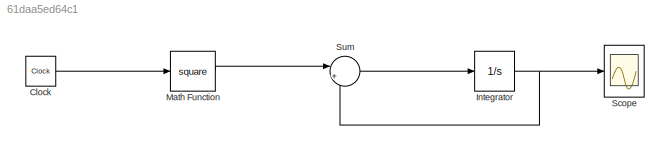
MODEL slx_61daa5ed64c1
KIND model
CONFIG AbsTol = auto
CONFIG EnableMultiTasking = off
CONFIG FixedStep = auto
CONFIG MaxStep = auto
CONFIG MinStep = auto
CONFIG RelTol = 1e-3
CONFIG SampleTimeConstraint = Unconstrained
CONFIG SolverName = VariableStepAuto
CONFIG StartTime = 0.0
CONFIG StopTime = 1
BLOCK [Clock] Clock
BLOCK [Integrator] Integrator
  Ports = [1, 1]
BLOCK [Math] Math Function
  Operator = square
  Ports = [1, 1]
BLOCK [Scope] Scope
  Floating = off
  NumInputPorts = 1
  Ports = [1]
  ScopeSpecificationString = Simulink.scopes.TimeScopeBlockCfg('CurrentConfiguration', extmgr.ConfigurationSet(extmgr.Configuration('Core','General UI',true,'FigureColor',[1 1 1]),extmgr.Configuration('Core','Source UI',true),extmgr.Configuration('Sources','WiredSimulink',true),extmgr.Configuration('Visuals','Time Domain',true,'SerializedDisplays',{struct('MinYLimReal','-0.05457','MaxYLimReal','0.49113','YLabelReal','','MinYL...<+1562ch>
BLOCK [Sum] Sum
  Inputs = |++
  NameLocation = top
  Ports = [2, 1]
LINE Clock:1 -> Math Function:1
NET Integrator:1 -> Scope:1, Sum:2
LINE Math Function:1 -> Sum:1
LINE Sum:1 -> Integrator:1
note: NET lines group one-source signal fan-out (src -> all destinations, sorted); 1:1 wires keep LINE
